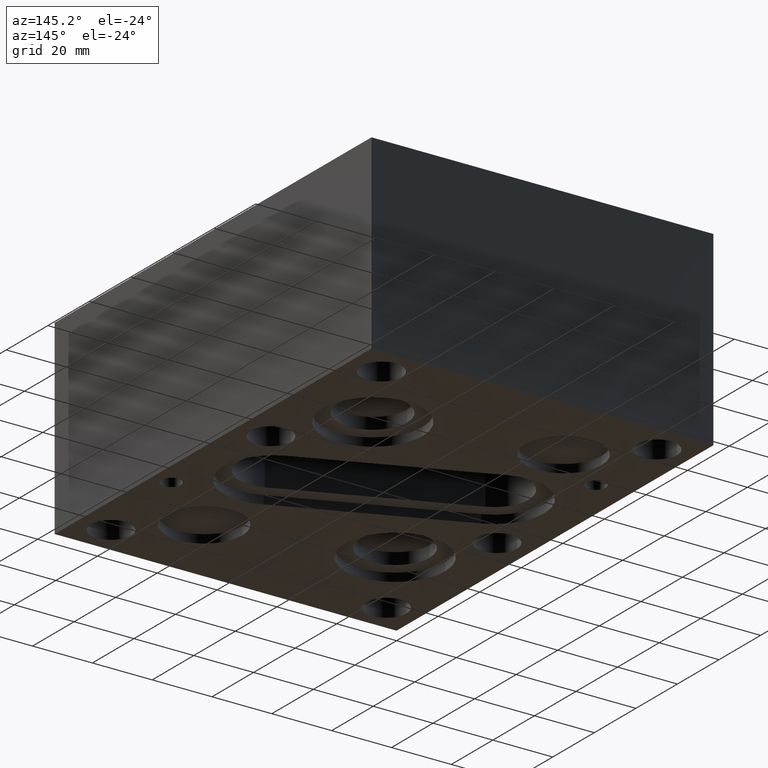
[diagram: clean part render]
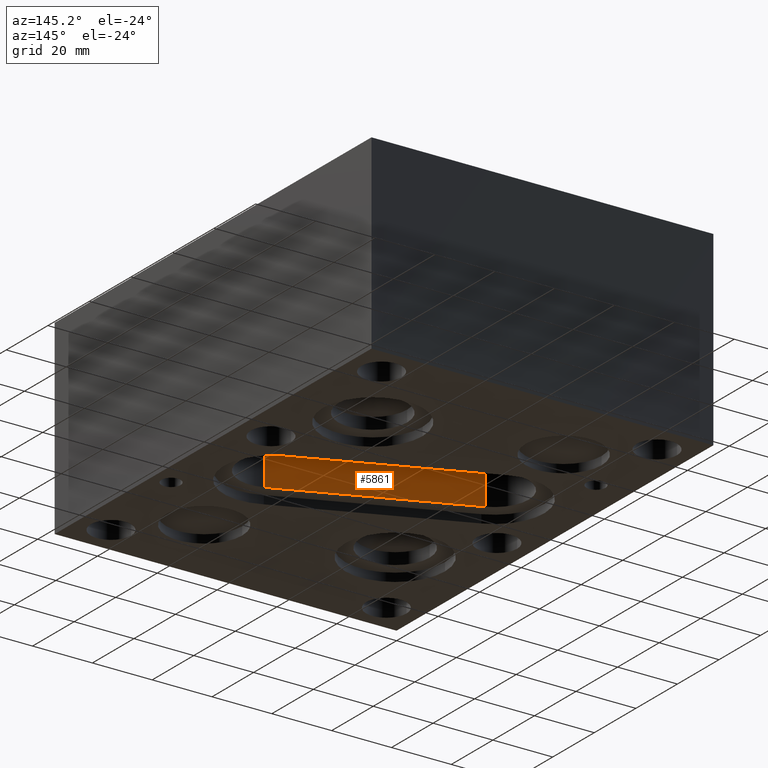
[diagram: same view with one face highlighted and labeled with its STEP entity id]
A machine part, auxiliary view. The second image highlights one B-rep face of the part: STEP entity #5861.
In plain terms, the highlighted planar face has unit normal (-0.3848, -0.923, 0).
Its self-contained STEP definition (entity closure, byte-faithful):
#678=FACE_OUTER_BOUND('',#987,.T.);
#987=EDGE_LOOP('',(#3979,#3980,#3981,#3982));
#1343=LINE('',#7659,#1957);
#1344=LINE('',#7661,#1958);
#1345=LINE('',#7663,#1959);
#1346=LINE('',#7664,#1960);
#1957=VECTOR('',#6473,10.);
#1958=VECTOR('',#6474,10.);
#1959=VECTOR('',#6475,10.);
#1960=VECTOR('',#6476,10.);
#2571=VERTEX_POINT('',#7657);
#2572=VERTEX_POINT('',#7658);
#2573=VERTEX_POINT('',#7660);
#2574=VERTEX_POINT('',#7662);
#3139=EDGE_CURVE('',#2571,#2572,#1343,.T.);
#3140=EDGE_CURVE('',#2571,#2573,#1344,.T.);
#3141=EDGE_CURVE('',#2573,#2574,#1345,.T.);
#3142=EDGE_CURVE('',#2572,#2574,#1346,.T.);
#3979=ORIENTED_EDGE('',*,*,#3139,.F.);
#3980=ORIENTED_EDGE('',*,*,#3140,.T.);
#3981=ORIENTED_EDGE('',*,*,#3141,.T.);
#3982=ORIENTED_EDGE('',*,*,#3142,.F.);
#5659=PLANE('',#6184);
#5861=ADVANCED_FACE('',(#678),#5659,.F.);
#6184=AXIS2_PLACEMENT_3D('',#7656,#6471,#6472);
#6471=DIRECTION('center_axis',(-0.384790147812501,-0.923004085660748,0.));
#6472=DIRECTION('ref_axis',(0.923004085660748,-0.384790147812501,0.));
#6473=DIRECTION('',(0.923004085660748,-0.384790147812501,0.));
#6474=DIRECTION('',(0.,0.,1.));
#6475=DIRECTION('',(0.923004085660748,-0.384790147812501,0.));
#6476=DIRECTION('',(0.,0.,1.));
#7656=CARTESIAN_POINT('Origin',(24.1471903950355,77.492470973374,2.794));
#7657=CARTESIAN_POINT('',(24.1471903950355,77.492470973374,2.794));
#7658=CARTESIAN_POINT('',(81.2975276012398,53.6671303895703,2.794));
#7659=CARTESIAN_POINT('',(24.1473589992535,77.4924006841489,2.794));
#7660=CARTESIAN_POINT('',(24.1471903950355,77.492470973374,12.7));
#7661=CARTESIAN_POINT('',(24.1471903950355,77.492470973374,2.794));
#7662=CARTESIAN_POINT('',(81.2975276012398,53.6671303895703,12.7));
#7663=CARTESIAN_POINT('',(81.2975276012398,53.6671303895703,12.7));
#7664=CARTESIAN_POINT('',(81.2975276012398,53.6671303895703,6.35));